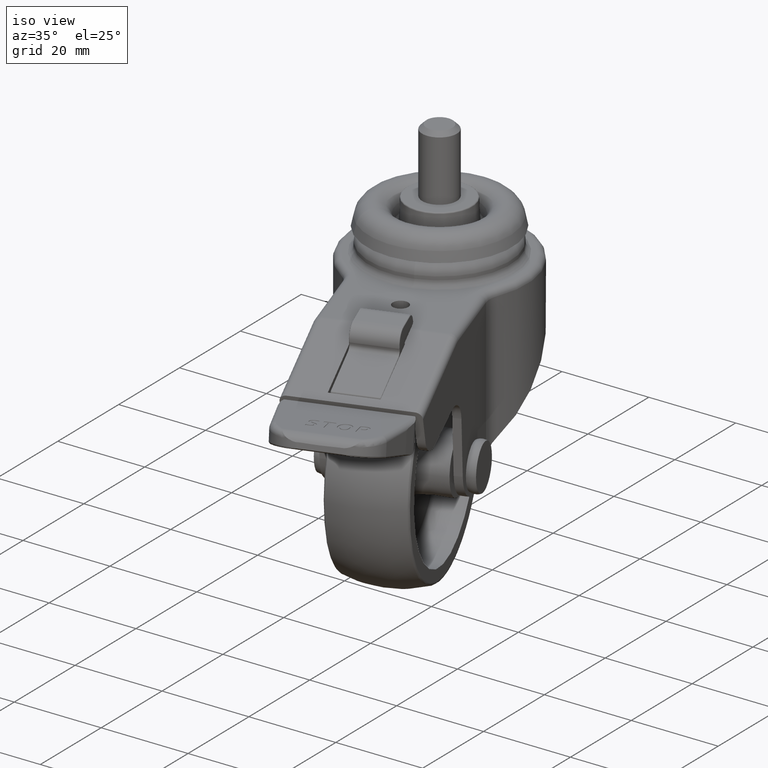
[diagram: clean part render]
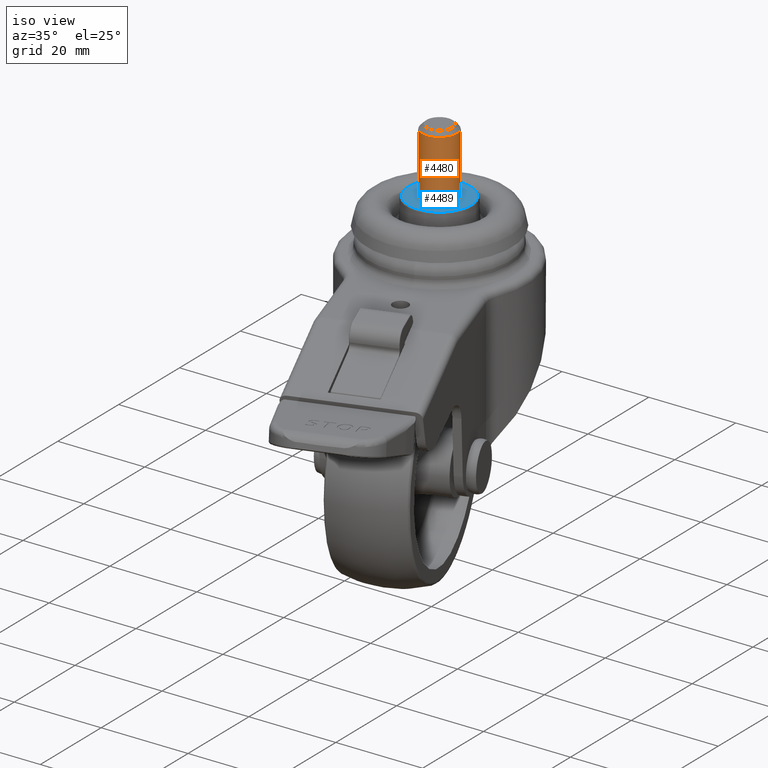
[diagram: same view with the hole feature highlighted: cylindrical wall and planar end face, labeled with their STEP entity ids]
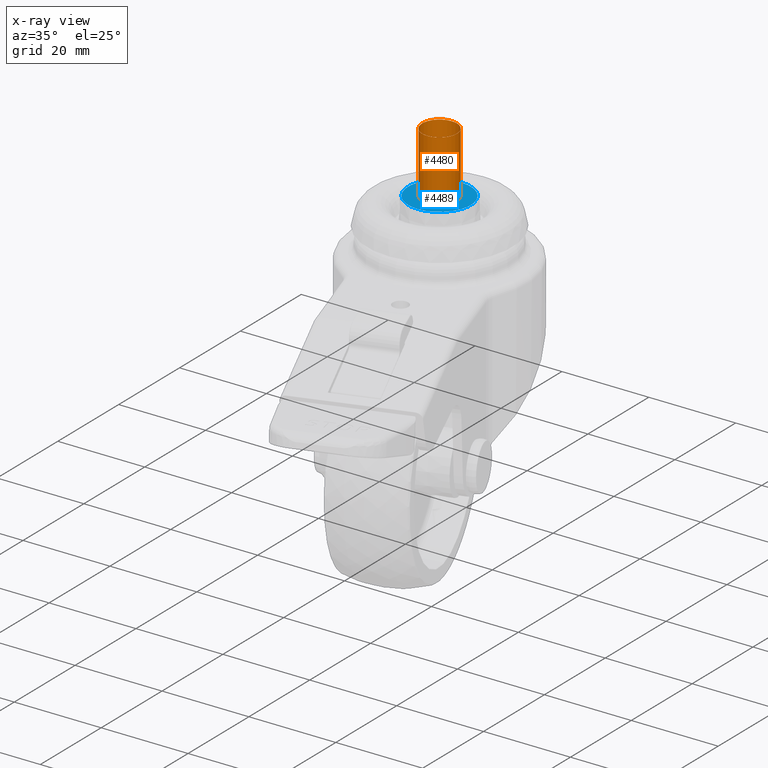
[diagram: x-ray of the same camera — body ghosted, the hole faces saturated]
A machine part, iso view. The highlighted faces form one hole feature of diameter 8 mm: the cylindrical wall (entity #4480, orange) and its adjacent planar end face (entity #4489, blue) — they share a circular edge in the B-rep.
The next image is the same camera in x-ray (body ghosted, the hole faces saturated) — the bore reads through the body.
Wall:
#969=CYLINDRICAL_SURFACE('',#4827,3.99999999999976);
#1091=FACE_BOUND('',#1553,.T.);
#1219=FACE_OUTER_BOUND('',#1552,.T.);
#1552=EDGE_LOOP('',(#3224));
#1553=EDGE_LOOP('',(#3225));
#1891=CIRCLE('',#4826,3.99999999999976);
#1892=CIRCLE('',#4828,3.99999999999976);
#2086=VERTEX_POINT('',#6748);
#2087=VERTEX_POINT('',#6751);
#2527=EDGE_CURVE('',#2086,#2086,#1891,.T.);
#2528=EDGE_CURVE('',#2087,#2087,#1892,.T.);
#3224=ORIENTED_EDGE('',*,*,#2528,.F.);
#3225=ORIENTED_EDGE('',*,*,#2527,.F.);
#4480=ADVANCED_FACE('',(#1219,#1091),#969,.T.);
#4826=AXIS2_PLACEMENT_3D('',#6749,#5408,#5409);
#4827=AXIS2_PLACEMENT_3D('',#6750,#5410,#5411);
#4828=AXIS2_PLACEMENT_3D('',#6752,#5412,#5413);
#5408=DIRECTION('center_axis',(0.,1.,0.));
#5409=DIRECTION('ref_axis',(0.,0.,1.));
#5410=DIRECTION('center_axis',(0.,-1.,0.));
#5411=DIRECTION('ref_axis',(0.,0.,-1.));
#5412=DIRECTION('center_axis',(0.,-1.,0.));
#5413=DIRECTION('ref_axis',(0.,0.,-1.));
#6748=CARTESIAN_POINT('',(-4.89858719658912E-16,19.5,-3.99999999999976));
#6749=CARTESIAN_POINT('Origin',(0.,19.5,0.));
#6750=CARTESIAN_POINT('Origin',(0.,-10.,0.));
#6751=CARTESIAN_POINT('',(-4.89858719658912E-16,5.5,3.99999999999976));
#6752=CARTESIAN_POINT('Origin',(0.,5.5,0.));
End face:
#851=PLANE('',#4847);
#1099=FACE_BOUND('',#1570,.T.);
#1228=FACE_OUTER_BOUND('',#1569,.T.);
#1569=EDGE_LOOP('',(#3241));
#1570=EDGE_LOOP('',(#3242));
#1892=CIRCLE('',#4828,3.99999999999976);
#1898=CIRCLE('',#4839,7.2133266061971);
#2087=VERTEX_POINT('',#6751);
#2093=VERTEX_POINT('',#6768);
#2528=EDGE_CURVE('',#2087,#2087,#1892,.T.);
#2534=EDGE_CURVE('',#2093,#2093,#1898,.T.);
#3241=ORIENTED_EDGE('',*,*,#2534,.F.);
#3242=ORIENTED_EDGE('',*,*,#2528,.T.);
#4489=ADVANCED_FACE('',(#1228,#1099),#851,.T.);
#4828=AXIS2_PLACEMENT_3D('',#6752,#5412,#5413);
#4839=AXIS2_PLACEMENT_3D('',#6769,#5434,#5435);
#4847=AXIS2_PLACEMENT_3D('',#6781,#5450,#5451);
#5412=DIRECTION('center_axis',(0.,-1.,0.));
#5413=DIRECTION('ref_axis',(0.,0.,-1.));
#5434=DIRECTION('center_axis',(0.,-1.,0.));
#5435=DIRECTION('ref_axis',(0.,0.,-1.));
#5450=DIRECTION('center_axis',(0.,1.,0.));
#5451=DIRECTION('ref_axis',(0.,0.,1.));
#6751=CARTESIAN_POINT('',(-4.89858719658912E-16,5.5,3.99999999999976));
#6752=CARTESIAN_POINT('Origin',(0.,5.5,0.));
#6768=CARTESIAN_POINT('',(0.,5.5,-7.2133266061971));
#6769=CARTESIAN_POINT('Origin',(0.,5.5,0.));
#6781=CARTESIAN_POINT('Origin',(4.99999999999976,5.5,0.));